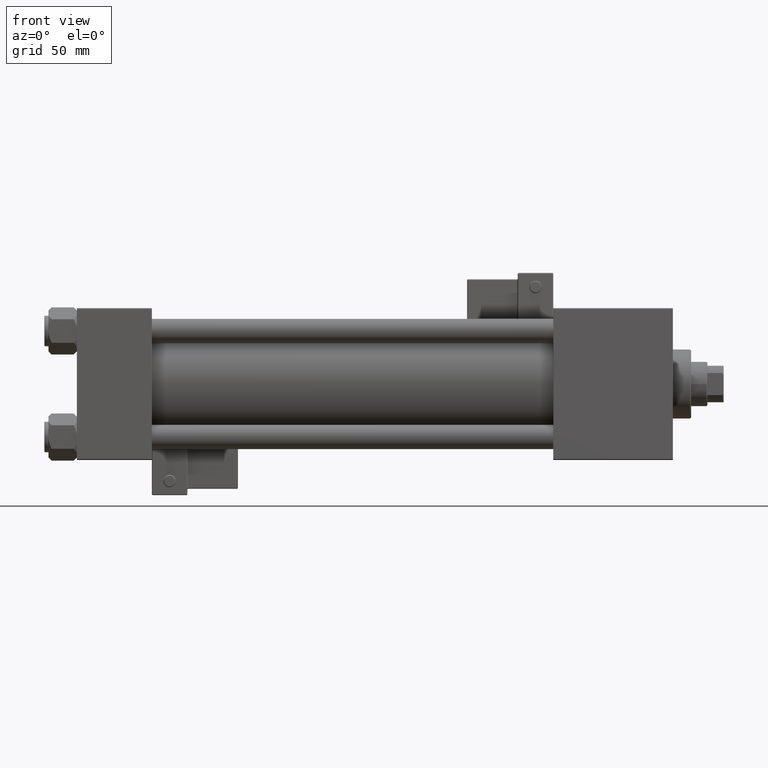
[diagram: clean part render]
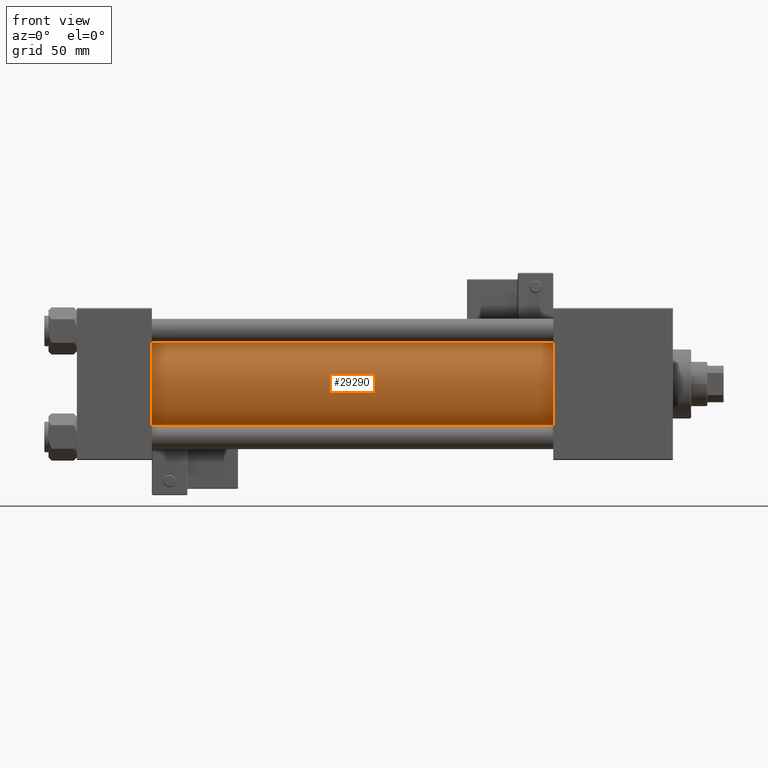
[diagram: same view with one face highlighted and labeled with its STEP entity id]
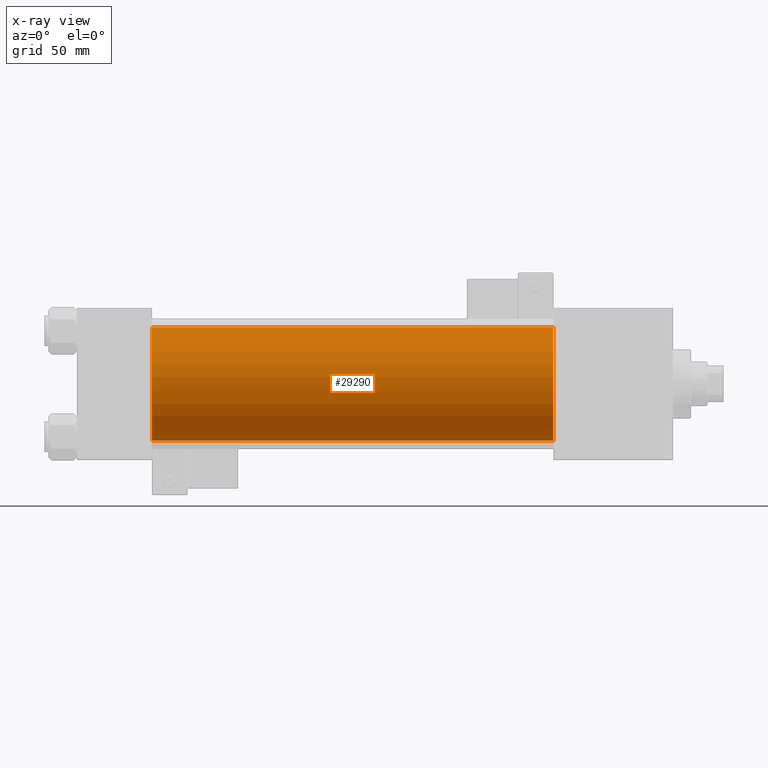
[diagram: x-ray of the same camera — body ghosted, the highlighted face saturated]
A machine part, front view. The second image highlights one B-rep face of the part: STEP entity #29290.
The next image is the same camera in x-ray: the body ghosted, the highlighted face saturated — about 0% of this face is hidden behind the body in this view.
In plain terms, the highlighted cylindrical surface (partial cylindrical patch) has radius 28 mm, axis along (-1, -0, -0).
Its self-contained STEP definition (entity closure, byte-faithful):
#1159 = AXIS2_PLACEMENT_3D ( 'NONE', #9824, #26044, #38261 ) ;
#4526 = CIRCLE ( 'NONE', #1159, 28.00000000000000000 ) ;
#4775 = VERTEX_POINT ( 'NONE', #33780 ) ;
#6924 = CARTESIAN_POINT ( 'NONE',  ( 235.0000000000000284, 8.269258236473784371E-16, -28.00000000000000000 ) ) ;
#7123 = VECTOR ( 'NONE', #19915, 1000.000000000000000 ) ;
#9824 = CARTESIAN_POINT ( 'NONE',  ( 37.00000000000000711, -2.602085213965210642E-15, 0.000000000000000000 ) ) ;
#10653 = DIRECTION ( 'NONE',  ( -1.000000000000000000, -0.000000000000000000, -0.000000000000000000 ) ) ;
#12971 = CARTESIAN_POINT ( 'NONE',  ( 235.0000000000000284, -2.602085213965210642E-15, 0.000000000000000000 ) ) ;
#15589 = VERTEX_POINT ( 'NONE', #32368 ) ;
#15863 = VERTEX_POINT ( 'NONE', #23289 ) ;
#16331 = DIRECTION ( 'NONE',  ( 1.000000000000000000, 0.000000000000000000, 0.000000000000000000 ) ) ;
#16874 = DIRECTION ( 'NONE',  ( 0.000000000000000000, 0.000000000000000000, -1.000000000000000000 ) ) ;
#17875 = ORIENTED_EDGE ( 'NONE', *, *, #37688, .T. ) ;
#19911 = VECTOR ( 'NONE', #10653, 1000.000000000000000 ) ;
#19915 = DIRECTION ( 'NONE',  ( -1.000000000000000000, -0.000000000000000000, -0.000000000000000000 ) ) ;
#20114 = CIRCLE ( 'NONE', #44735, 28.00000000000000000 ) ;
#20872 = CARTESIAN_POINT ( 'NONE',  ( 235.0000000000000284, -2.602085213965210642E-15, 0.000000000000000000 ) ) ;
#21185 = LINE ( 'NONE', #21440, #7123 ) ;
#21440 = CARTESIAN_POINT ( 'NONE',  ( 235.0000000000000284, -2.602085213965210642E-15, 28.00000000000000000 ) ) ;
#21956 = ORIENTED_EDGE ( 'NONE', *, *, #40658, .F. ) ;
#23289 = CARTESIAN_POINT ( 'NONE',  ( 37.00000000000000711, -2.602085213965210642E-15, 28.00000000000000000 ) ) ;
#24259 = VERTEX_POINT ( 'NONE', #34433 ) ;
#26044 = DIRECTION ( 'NONE',  ( 1.000000000000000000, -0.000000000000000000, 0.000000000000000000 ) ) ;
#27805 = ORIENTED_EDGE ( 'NONE', *, *, #48433, .F. ) ;
#29179 = DIRECTION ( 'NONE',  ( -1.000000000000000000, -0.000000000000000000, -0.000000000000000000 ) ) ;
#29290 = ADVANCED_FACE ( 'NONE', ( #49630 ), #33166, .T. ) ;
#29455 = DIRECTION ( 'NONE',  ( 0.000000000000000000, 0.000000000000000000, 1.000000000000000000 ) ) ;
#32368 = CARTESIAN_POINT ( 'NONE',  ( 235.0000000000000284, -2.602085213965210642E-15, 28.00000000000000000 ) ) ;
#33166 = CYLINDRICAL_SURFACE ( 'NONE', #44282, 28.00000000000000000 ) ;
#33780 = CARTESIAN_POINT ( 'NONE',  ( 235.0000000000000284, 8.269258236473784371E-16, -28.00000000000000000 ) ) ;
#34433 = CARTESIAN_POINT ( 'NONE',  ( 37.00000000000000711, 8.269258236473784371E-16, -28.00000000000000000 ) ) ;
#37688 = EDGE_CURVE ( 'NONE', #15863, #24259, #4526, .T. ) ;
#38261 = DIRECTION ( 'NONE',  ( 0.000000000000000000, 0.000000000000000000, 1.000000000000000000 ) ) ;
#39003 = EDGE_CURVE ( 'NONE', #15589, #15863, #21185, .T. ) ;
#40658 = EDGE_CURVE ( 'NONE', #4775, #24259, #51056, .T. ) ;
#42215 = EDGE_LOOP ( 'NONE', ( #21956, #27805, #46662, #17875 ) ) ;
#44282 = AXIS2_PLACEMENT_3D ( 'NONE', #12971, #29179, #29455 ) ;
#44735 = AXIS2_PLACEMENT_3D ( 'NONE', #20872, #16331, #16874 ) ;
#46662 = ORIENTED_EDGE ( 'NONE', *, *, #39003, .T. ) ;
#48433 = EDGE_CURVE ( 'NONE', #15589, #4775, #20114, .T. ) ;
#49630 = FACE_OUTER_BOUND ( 'NONE', #42215, .T. ) ;
#51056 = LINE ( 'NONE', #6924, #19911 ) ;